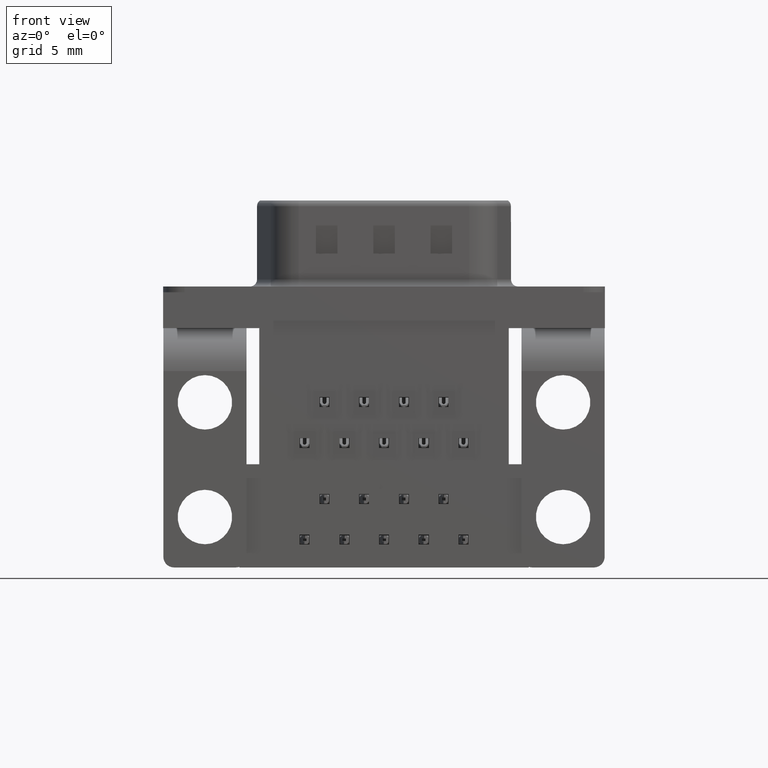
[diagram: clean part render]
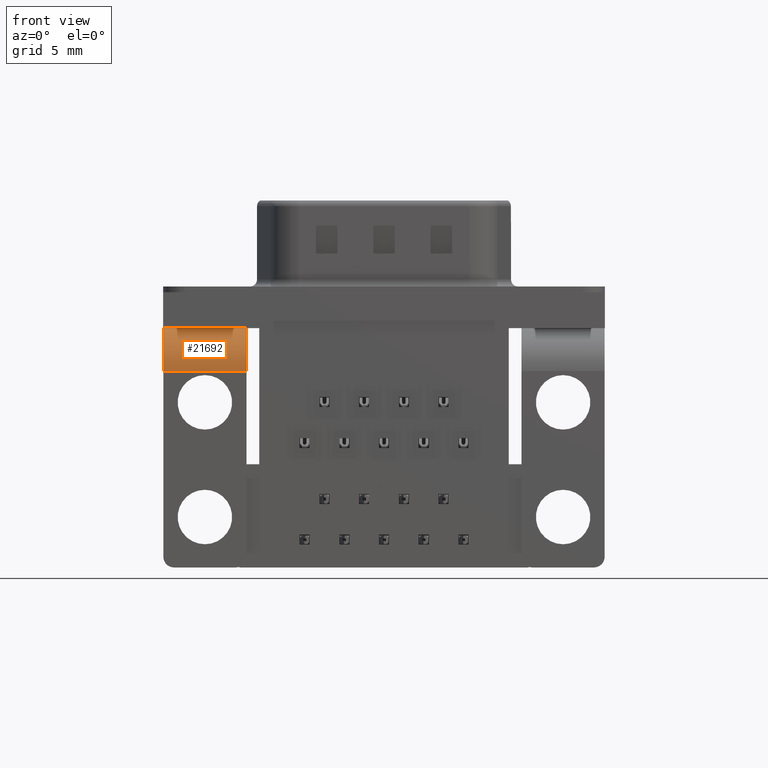
[diagram: same view with one face highlighted and labeled with its STEP entity id]
A machine part, front view. The second image highlights one B-rep face of the part: STEP entity #21692.
In plain terms, the highlighted cylindrical surface (partial cylindrical patch) has radius 3 mm, axis along (-1, 0, 0).
Its self-contained STEP definition (entity closure, byte-faithful):
#1736 = FACE_OUTER_BOUND ( 'NONE', #31416, .T. ) ;
#2293 = EDGE_CURVE ( 'NONE', #25742, #13126, #33863, .T. ) ;
#6623 = CARTESIAN_POINT ( 'NONE',  ( 2.899999999999999911, -3.274999999999993250, -2.500000000000000000 ) ) ;
#7526 = DIRECTION ( 'NONE',  ( 0.0000000000000000000, 8.673617379884032514E-16, -1.000000000000000000 ) ) ;
#9851 = CARTESIAN_POINT ( 'NONE',  ( 2.899999999999999911, -6.275000000000001243, -5.500000000000000000 ) ) ;
#9880 = CARTESIAN_POINT ( 'NONE',  ( 2.899999999999999911, -3.275000000000000799, -5.500000000000000000 ) ) ;
#11723 = CIRCLE ( 'NONE', #31385, 3.000000000000000888 ) ;
#11759 = VECTOR ( 'NONE', #22773, 1000.000000000000000 ) ;
#11824 = CIRCLE ( 'NONE', #16342, 3.000000000000000888 ) ;
#13126 = VERTEX_POINT ( 'NONE', #6623 ) ;
#13328 = DIRECTION ( 'NONE',  ( -1.000000000000000000, -0.0000000000000000000, 0.0000000000000000000 ) ) ;
#14368 = VECTOR ( 'NONE', #33932, 1000.000000000000000 ) ;
#14466 = DIRECTION ( 'NONE',  ( 0.0000000000000000000, 0.0000000000000000000, -1.000000000000000000 ) ) ;
#16280 = VERTEX_POINT ( 'NONE', #22368 ) ;
#16342 = AXIS2_PLACEMENT_3D ( 'NONE', #20081, #28333, #14466 ) ;
#16587 = EDGE_CURVE ( 'NONE', #29831, #16280, #23367, .T. ) ;
#20081 = CARTESIAN_POINT ( 'NONE',  ( 2.899999999999999911, -3.275000000000000799, -5.500000000000000000 ) ) ;
#20444 = CARTESIAN_POINT ( 'NONE',  ( 2.899999999999999911, -6.275000000000001243, -5.500000000000000000 ) ) ;
#20481 = ORIENTED_EDGE ( 'NONE', *, *, #2293, .F. ) ;
#21692 = ADVANCED_FACE ( 'NONE', ( #1736 ), #30965, .T. ) ;
#21820 = ORIENTED_EDGE ( 'NONE', *, *, #30872, .F. ) ;
#21835 = CARTESIAN_POINT ( 'NONE',  ( -2.899999999999999911, -3.274999999999993250, -2.500000000000000000 ) ) ;
#22368 = CARTESIAN_POINT ( 'NONE',  ( -2.899999999999999911, -6.275000000000001243, -5.500000000000000000 ) ) ;
#22773 = DIRECTION ( 'NONE',  ( 1.000000000000000000, -0.0000000000000000000, -0.0000000000000000000 ) ) ;
#23046 = DIRECTION ( 'NONE',  ( 0.0000000000000000000, 0.0000000000000000000, 1.000000000000000000 ) ) ;
#23367 = LINE ( 'NONE', #9851, #14368 ) ;
#23464 = ORIENTED_EDGE ( 'NONE', *, *, #33010, .F. ) ;
#25439 = ORIENTED_EDGE ( 'NONE', *, *, #16587, .F. ) ;
#25742 = VERTEX_POINT ( 'NONE', #21835 ) ;
#27330 = CARTESIAN_POINT ( 'NONE',  ( -2.899999999999999911, -3.275000000000000799, -5.500000000000000000 ) ) ;
#27717 = CARTESIAN_POINT ( 'NONE',  ( 2.899999999999999911, -3.275000000000000355, -2.500000000000000000 ) ) ;
#28333 = DIRECTION ( 'NONE',  ( 1.000000000000000000, 0.0000000000000000000, -0.0000000000000000000 ) ) ;
#28495 = DIRECTION ( 'NONE',  ( -1.000000000000000000, 0.0000000000000000000, 0.0000000000000000000 ) ) ;
#29831 = VERTEX_POINT ( 'NONE', #20444 ) ;
#30243 = AXIS2_PLACEMENT_3D ( 'NONE', #9880, #28495, #23046 ) ;
#30872 = EDGE_CURVE ( 'NONE', #16280, #25742, #11723, .T. ) ;
#30965 = CYLINDRICAL_SURFACE ( 'NONE', #30243, 3.000000000000000000 ) ;
#31385 = AXIS2_PLACEMENT_3D ( 'NONE', #27330, #13328, #7526 ) ;
#31416 = EDGE_LOOP ( 'NONE', ( #23464, #20481, #21820, #25439 ) ) ;
#33010 = EDGE_CURVE ( 'NONE', #13126, #29831, #11824, .T. ) ;
#33863 = LINE ( 'NONE', #27717, #11759 ) ;
#33932 = DIRECTION ( 'NONE',  ( -1.000000000000000000, 0.0000000000000000000, 0.0000000000000000000 ) ) ;